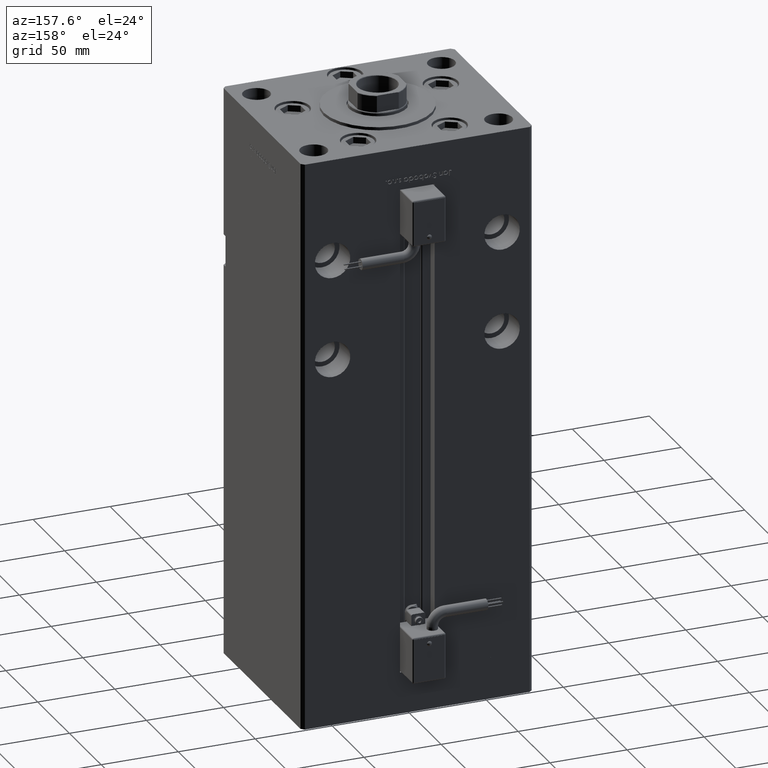
[diagram: clean part render]
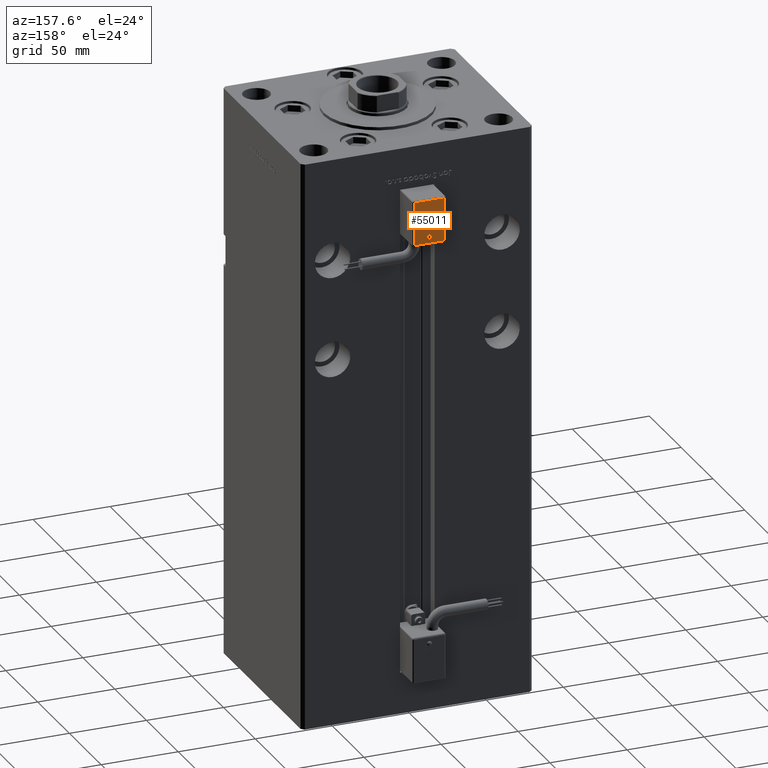
[diagram: same view with one face highlighted and labeled with its STEP entity id]
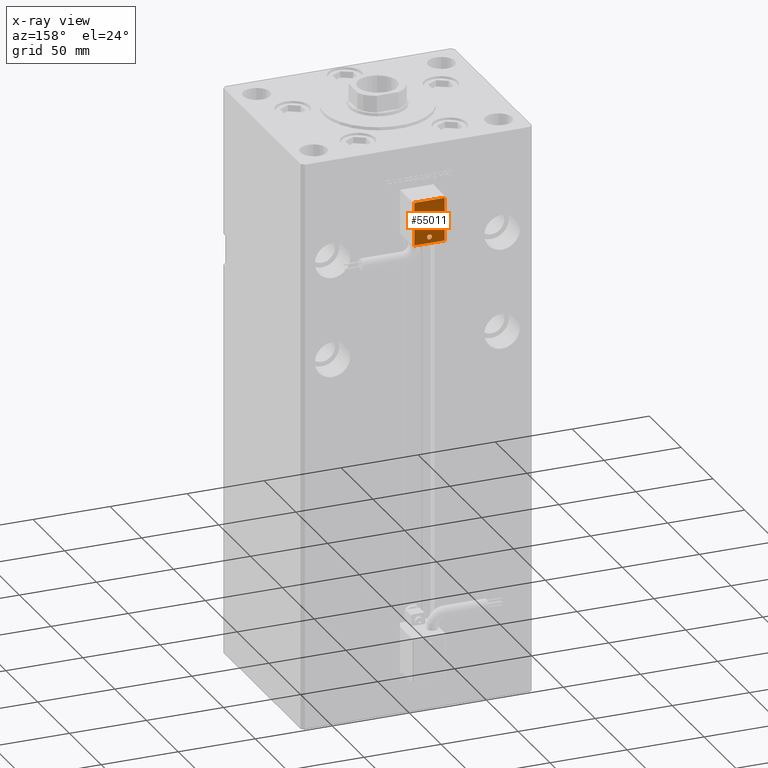
[diagram: x-ray of the same camera — body ghosted, the highlighted face saturated]
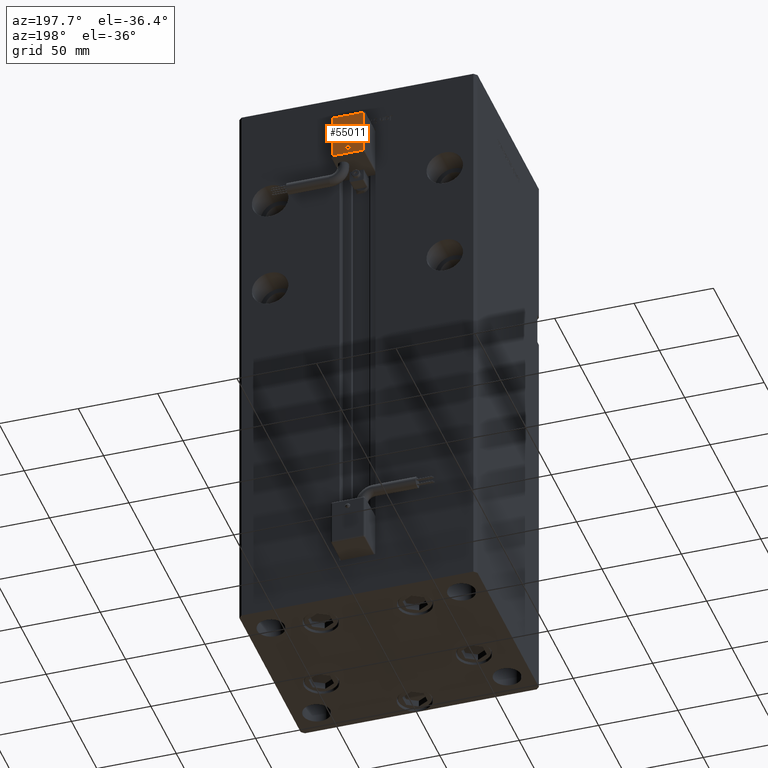
[diagram: same view with one face highlighted and labeled with its STEP entity id]
A machine part, auxiliary view. The second image highlights one B-rep face of the part: STEP entity #55011.
The next image is the same camera in x-ray: the body ghosted, the highlighted face saturated — about 0% of this face is hidden behind the body in this view.
A second angle (auxiliary view) of the same face is appended — the face is thin or edge-on in the first view.
In plain terms, the highlighted planar face has unit normal (0, 1, 0).
Its self-contained STEP definition (entity closure, byte-faithful):
#1188 = LINE ( 'NONE', #22728, #8703 ) ;
#1366 = ORIENTED_EDGE ( 'NONE', *, *, #26648, .T. ) ;
#1487 = DIRECTION ( 'NONE',  ( -0.000000000000000000, 1.000000000000000000, 2.478176394252581634E-16 ) ) ;
#3734 = CARTESIAN_POINT ( 'NONE',  ( -9.799999999999998934, 51.60000000000000142, -54.00000000000000000 ) ) ;
#4284 = VERTEX_POINT ( 'NONE', #28441 ) ;
#4708 = LINE ( 'NONE', #21719, #15144 ) ;
#4929 = ORIENTED_EDGE ( 'NONE', *, *, #34964, .T. ) ;
#5019 = CARTESIAN_POINT ( 'NONE',  ( 9.799999999999998934, 51.59999999999999432, -26.00000000000000000 ) ) ;
#5318 = CIRCLE ( 'NONE', #36966, 1.594260539142210220 ) ;
#5469 = VECTOR ( 'NONE', #5582, 1000.000000000000000 ) ;
#5582 = DIRECTION ( 'NONE',  ( 0.000000000000000000, 2.478176394252581634E-16, -1.000000000000000000 ) ) ;
#6643 = ORIENTED_EDGE ( 'NONE', *, *, #11757, .T. ) ;
#7009 = ORIENTED_EDGE ( 'NONE', *, *, #53666, .T. ) ;
#7404 = CARTESIAN_POINT ( 'NONE',  ( 1.122044604924999863E-14, 51.60000000000000142, -50.00000000000000000 ) ) ;
#8096 = VECTOR ( 'NONE', #19613, 1000.000000000000000 ) ;
#8703 = VECTOR ( 'NONE', #30939, 1000.000000000000000 ) ;
#9128 = CARTESIAN_POINT ( 'NONE',  ( 1.157444300081134802E-14, 51.60000000000000142, -51.59426053914221200 ) ) ;
#11757 = EDGE_CURVE ( 'NONE', #31097, #4284, #1188, .T. ) ;
#12691 = AXIS2_PLACEMENT_3D ( 'NONE', #43775, #44053, #38959 ) ;
#13259 = DIRECTION ( 'NONE',  ( 0.000000000000000000, 0.000000000000000000, 1.000000000000000000 ) ) ;
#13396 = EDGE_LOOP ( 'NONE', ( #6643, #4929, #1366, #54997 ) ) ;
#15144 = VECTOR ( 'NONE', #39539, 1000.000000000000000 ) ;
#15515 = VERTEX_POINT ( 'NONE', #33627 ) ;
#17975 = EDGE_CURVE ( 'NONE', #38491, #36884, #5318, .T. ) ;
#18506 = DIRECTION ( 'NONE',  ( 0.000000000000000000, -2.478176394252581634E-16, 1.000000000000000000 ) ) ;
#18782 = ORIENTED_EDGE ( 'NONE', *, *, #17975, .T. ) ;
#19613 = DIRECTION ( 'NONE',  ( 0.000000000000000000, -2.478176394252581634E-16, 1.000000000000000000 ) ) ;
#21719 = CARTESIAN_POINT ( 'NONE',  ( 9.799999999999998934, 51.60000000000000142, -54.00000000000000000 ) ) ;
#22728 = CARTESIAN_POINT ( 'NONE',  ( -9.799999999999998934, 51.59999999999999432, -26.00000000000000000 ) ) ;
#23028 = FACE_BOUND ( 'NONE', #50583, .T. ) ;
#24781 = CARTESIAN_POINT ( 'NONE',  ( -9.799999999999998934, 51.59999999999999432, -26.00000000000000000 ) ) ;
#26648 = EDGE_CURVE ( 'NONE', #15515, #48139, #4708, .T. ) ;
#28441 = CARTESIAN_POINT ( 'NONE',  ( 9.799999999999998934, 51.59999999999999432, -26.00000000000000000 ) ) ;
#30786 = LINE ( 'NONE', #5019, #5469 ) ;
#30939 = DIRECTION ( 'NONE',  ( 1.000000000000000000, 0.000000000000000000, 0.000000000000000000 ) ) ;
#31097 = VERTEX_POINT ( 'NONE', #24781 ) ;
#31796 = FACE_OUTER_BOUND ( 'NONE', #13396, .T. ) ;
#32286 = EDGE_CURVE ( 'NONE', #48139, #31097, #45651, .T. ) ;
#33377 = CARTESIAN_POINT ( 'NONE',  ( 1.067120849106190655E-14, 51.60000000000000142, -48.40573946085779511 ) ) ;
#33627 = CARTESIAN_POINT ( 'NONE',  ( 9.799999999999998934, 51.60000000000000142, -54.00000000000000000 ) ) ;
#34964 = EDGE_CURVE ( 'NONE', #4284, #15515, #30786, .T. ) ;
#36884 = VERTEX_POINT ( 'NONE', #9128 ) ;
#36966 = AXIS2_PLACEMENT_3D ( 'NONE', #7404, #48099, #13259 ) ;
#38491 = VERTEX_POINT ( 'NONE', #33377 ) ;
#38943 = CIRCLE ( 'NONE', #12691, 1.594260539142210220 ) ;
#38959 = DIRECTION ( 'NONE',  ( 0.000000000000000000, 0.000000000000000000, 1.000000000000000000 ) ) ;
#39539 = DIRECTION ( 'NONE',  ( -1.000000000000000000, 0.000000000000000000, 0.000000000000000000 ) ) ;
#43775 = CARTESIAN_POINT ( 'NONE',  ( 1.122044604924999863E-14, 51.60000000000000142, -50.00000000000000000 ) ) ;
#44053 = DIRECTION ( 'NONE',  ( 0.000000000000000000, -1.000000000000000000, -2.478176394252581634E-16 ) ) ;
#44267 = PLANE ( 'NONE',  #51646 ) ;
#45651 = LINE ( 'NONE', #54168, #8096 ) ;
#48099 = DIRECTION ( 'NONE',  ( 0.000000000000000000, -1.000000000000000000, -2.478176394252581634E-16 ) ) ;
#48139 = VERTEX_POINT ( 'NONE', #3734 ) ;
#50583 = EDGE_LOOP ( 'NONE', ( #7009, #18782 ) ) ;
#51646 = AXIS2_PLACEMENT_3D ( 'NONE', #53059, #1487, #18506 ) ;
#53059 = CARTESIAN_POINT ( 'NONE',  ( -2.664535259099999904E-33, 51.59999999999998721, 1.277460843040079085E-14 ) ) ;
#53666 = EDGE_CURVE ( 'NONE', #36884, #38491, #38943, .T. ) ;
#54168 = CARTESIAN_POINT ( 'NONE',  ( -9.799999999999998934, 51.60000000000000142, -54.00000000000000000 ) ) ;
#54997 = ORIENTED_EDGE ( 'NONE', *, *, #32286, .T. ) ;
#55011 = ADVANCED_FACE ( 'NONE', ( #23028, #31796 ), #44267, .T. ) ;